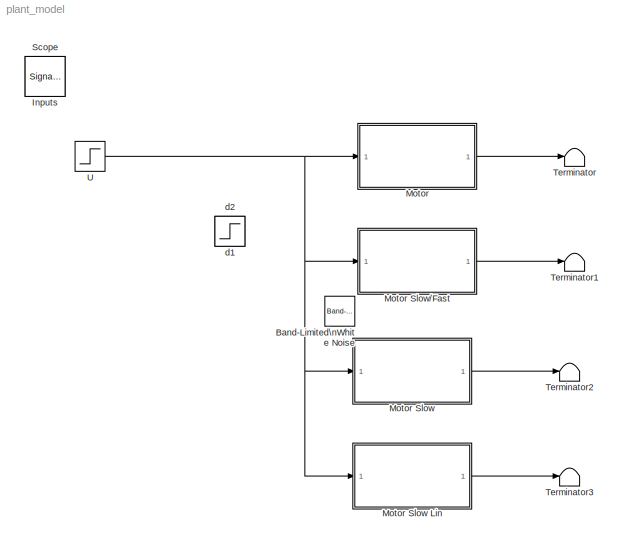
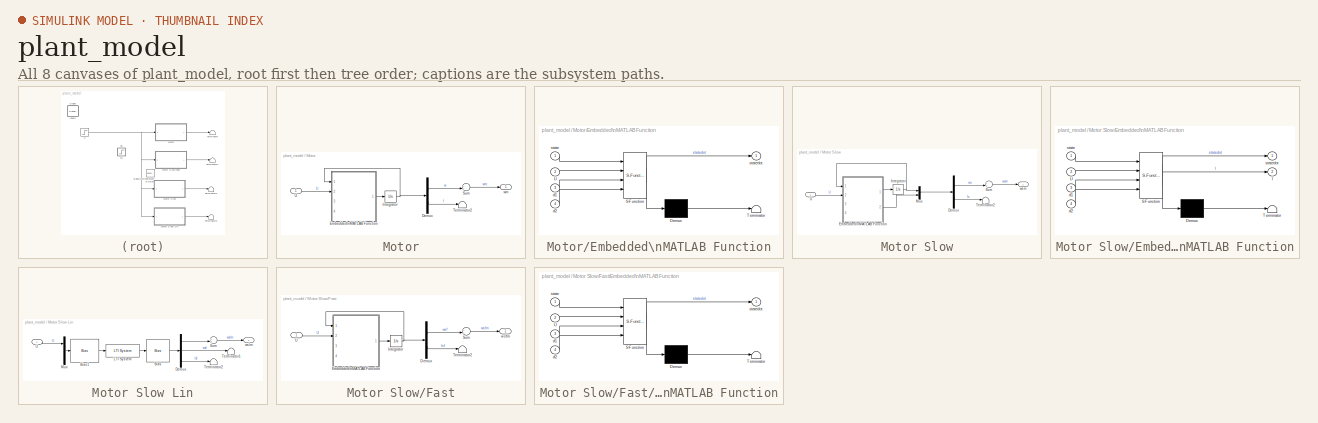
[diagram: thumbnail index - all 8 canvases of the model, root first then tree order]
MODEL plant_model
KIND model
BLOCK [Reference] Band-Limited\nWhite Noise  REF=simulink/Sources/Band-Limited\nWhite Noise
  Cov = [0.1]
  FunctionWithSeparateData = off
  IOType = siggen
  Ports = [0, 1]
  RTWMemSecDataConstants = Inherit from model
  RTWMemSecDataInternal = Inherit from model
  RTWMemSecDataParameters = Inherit from model
  RTWMemSecFuncExecute = Inherit from model
  RTWMemSecFuncInitTerm = Inherit from model
  SID = 54
  ShowPortLabels = FromPortIcon
  SourceBlock = simulink/Sources/Band-Limited\nWhite Noise
  SourceType = Band-Limited White Noise.
  SystemSampleTime = -1
  Ts = 1e-2
  VectorParams1D = on
  seed = [23341]
BLOCK [SignalViewerScope] Inputs
  DataFormat = Array
  IOType = viewer
  LegendLocations = 240.3333           653            66      20.33333\n236.8333         431.5            70      20.33333\n236.8333         211.5            70      20.33333
  LimitDataPoints = off
  MaxDataPoints = 7500
  NumInputPorts = 3
  Ports = []
  RefreshTime = 0.035000
  SID = 55
  ShowDataMarkers = off
  ShowLegends = on
  TimeRange = 20
  YMax = 6.000000000000001~1~1
  YMin = 4.5~0~0
BLOCK [SubSystem] Motor
  FunctionWithSeparateData = off
  MaskHideContents = off
  MinAlgLoopOccurrences = off
  Opaque = off
  Ports = [1, 1]
  PropExecContextOutsideSubsystem = off
  RTWSystemCode = Auto
  RequestExecContextInheritance = off
  SID = 1
BLOCK [SubSystem] Motor Slow
  FunctionWithSeparateData = off
  MaskHideContents = off
  MinAlgLoopOccurrences = off
  Opaque = off
  Ports = [1, 1]
  PropExecContextOutsideSubsystem = off
  RTWSystemCode = Auto
  RequestExecContextInheritance = off
  SID = 13
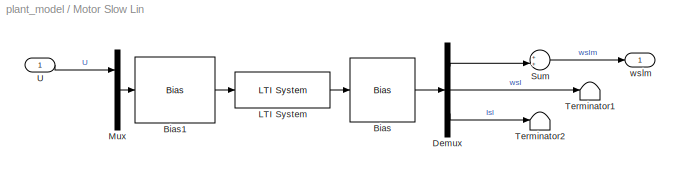
BLOCK [SubSystem] Motor Slow Lin
  FunctionWithSeparateData = off
  MaskHideContents = off
  MinAlgLoopOccurrences = off
  Opaque = off
  Ports = [1, 1]
  PropExecContextOutsideSubsystem = off
  RTWSystemCode = Auto
  RequestExecContextInheritance = off
  SID = 26
BLOCK [Bias] Motor Slow Lin/Bias
  Bias = [wbar; wbar; Ibar]
  SID = 28
  SaturateOnIntegerOverflow = off
BLOCK [Bias] Motor Slow Lin/Bias1
  Bias = [-Ubar; -d1bar; -d2bar]
  SID = 29
  SaturateOnIntegerOverflow = off
BLOCK [Demux] Motor Slow Lin/Demux
  DisplayOption = bar
  Outputs = 3
  Ports = [1, 3]
  SID = 30
BLOCK [Reference] Motor Slow Lin/LTI System  REF=cstblocks/LTI System
  FunctionWithSeparateData = off
  IC = 0
  Ports = [1, 1]
  RTWMemSecDataConstants = Inherit from model
  RTWMemSecDataInternal = Inherit from model
  RTWMemSecDataParameters = Inherit from model
  RTWMemSecFuncExecute = Inherit from model
  RTWMemSecFuncInitTerm = Inherit from model
  SID = 31
  ShowPortLabels = FromPortIcon
  SourceBlock = cstblocks/LTI System
  SourceType = LTI Block
  SystemSampleTime = -1
  sys = syss(:,:,2)
BLOCK [Mux] Motor Slow Lin/Mux
  DisplayOption = bar
  Inputs = 3
  Ports = [3, 1]
  SID = 32
BLOCK [Sum] Motor Slow Lin/Sum
  IconShape = round
  InputSameDT = off
  Inputs = ++|
  OutDataType = sfix(16)
  OutDataTypeMode = Inherit via internal rule
  OutDataTypeStr = Inherit: Inherit via internal rule
  OutScaling = 2^0
  Ports = [2, 1]
  SID = 33
  SaturateOnIntegerOverflow = off
BLOCK [Terminator] Motor Slow Lin/Terminator1
  SID = 34
BLOCK [Terminator] Motor Slow Lin/Terminator2
  SID = 35
BLOCK [Inport] Motor Slow Lin/U
  IconDisplay = Port number
  OutDataType = sfix(16)
  OutScaling = 2^0
  SID = 27
BLOCK [Outport] Motor Slow Lin/wslm
  IconDisplay = Port number
  OutDataType = sfix(16)
  OutScaling = 2^0
  SID = 36
BLOCK [SubSystem] Motor Slow//Fast
  FunctionWithSeparateData = off
  MaskHideContents = off
  MinAlgLoopOccurrences = off
  Opaque = off
  Ports = [1, 1]
  PropExecContextOutsideSubsystem = off
  RTWSystemCode = Auto
  RequestExecContextInheritance = off
  SID = 37
BLOCK [Demux] Motor Slow//Fast/Demux
  DisplayOption = bar
  Outputs = 2
  Ports = [1, 2]
  SID = 59
BLOCK [SubSystem] Motor Slow//Fast/Embedded\nMATLAB Function
  FunctionWithSeparateData = off
  MaskDescription = Embedded MATLAB block
  MaskDisplay = disp('fcn');
  MaskHideContents = off
  MaskIconFrame = on
  MaskIconOpaque = off
  MaskIconRotate = none
  MaskIconUnits = autoscale
  MaskPortRotate = default
  MaskSelfModifiable = on
  MaskType = Stateflow
  MinAlgLoopOccurrences = off
  Opaque = off
  PermitHierarchicalResolution = ExplicitOnly
  Ports = [4, 1]
  PropExecContextOutsideSubsystem = off
  RTWSystemCode = Auto
  RequestExecContextInheritance = off
  SID = 40
  TreatAsAtomicUnit = on
BLOCK [Demux] Motor Slow//Fast/Embedded\nMATLAB Function/ Demux 
  Outputs = 1
  Ports = [1, 1]
  SID = 14
BLOCK [S-Function] Motor Slow//Fast/Embedded\nMATLAB Function/ SFunction 
  EnableBusSupport = on
  FunctionName = sf_sfun
  PortCounts = [4 2]
  Ports = [4, 2]
  SID = 13
  Tag = Stateflow S-Function plant_model 1
BLOCK [Terminator] Motor Slow//Fast/Embedded\nMATLAB Function/ Terminator 
  SID = 16
BLOCK [Inport] Motor Slow//Fast/Embedded\nMATLAB Function/U
  IconDisplay = Port number
  OutDataType = sfix(16)
  OutScaling = 2^0
  Port = 2
  SID = 2
BLOCK [Inport] Motor Slow//Fast/Embedded\nMATLAB Function/d1
  IconDisplay = Port number
  OutDataType = sfix(16)
  OutScaling = 2^0
  Port = 3
  SID = 3
BLOCK [Inport] Motor Slow//Fast/Embedded\nMATLAB Function/d2
  IconDisplay = Port number
  OutDataType = sfix(16)
  OutScaling = 2^0
  Port = 4
  SID = 4
BLOCK [Inport] Motor Slow//Fast/Embedded\nMATLAB Function/state
  IconDisplay = Port number
  OutDataType = sfix(16)
  OutScaling = 2^0
  SID = 1
BLOCK [Outport] Motor Slow//Fast/Embedded\nMATLAB Function/statedot
  IconDisplay = Port number
  OutDataType = sfix(16)
  OutScaling = 2^0
  SID = 8
BLOCK [Integrator] Motor Slow//Fast/Integrator
  InitialCondition = [wbar; Ibar]
  Ports = [1, 1]
  SID = 70
BLOCK [Sum] Motor Slow//Fast/Sum
  IconShape = round
  InputSameDT = off
  Inputs = ++|
  OutDataType = sfix(16)
  OutDataTypeMode = Inherit via internal rule
  OutDataTypeStr = Inherit: Inherit via internal rule
  OutScaling = 2^0
  Ports = [2, 1]
  SID = 60
  SaturateOnIntegerOverflow = off
BLOCK [Terminator] Motor Slow//Fast/Terminator2
  SID = 61
BLOCK [Inport] Motor Slow//Fast/U
  IconDisplay = Port number
  OutDataType = sfix(16)
  OutScaling = 2^0
  SID = 38
BLOCK [Outport] Motor Slow//Fast/wsfm
  IconDisplay = Port number
  OutDataType = sfix(16)
  OutScaling = 2^0
  SID = 62
BLOCK [Demux] Motor Slow/Demux
  DisplayOption = bar
  Outputs = 2
  Ports = [1, 2]
  SID = 66
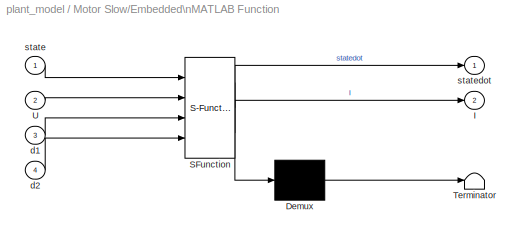
BLOCK [SubSystem] Motor Slow/Embedded\nMATLAB Function
  FunctionWithSeparateData = off
  MaskDescription = Embedded MATLAB block
  MaskDisplay = disp('fcn');
  MaskHideContents = off
  MaskIconFrame = on
  MaskIconOpaque = off
  MaskIconRotate = none
  MaskIconUnits = autoscale
  MaskPortRotate = default
  MaskSelfModifiable = on
  MaskType = Stateflow
  MinAlgLoopOccurrences = off
  Opaque = off
  PermitHierarchicalResolution = ExplicitOnly
  Ports = [4, 2]
  PropExecContextOutsideSubsystem = off
  RTWSystemCode = Auto
  RequestExecContextInheritance = off
  SID = 16
  TreatAsAtomicUnit = on
BLOCK [Demux] Motor Slow/Embedded\nMATLAB Function/ Demux 
  Outputs = 1
  Ports = [1, 1]
  SID = 15
BLOCK [S-Function] Motor Slow/Embedded\nMATLAB Function/ SFunction 
  EnableBusSupport = on
  FunctionName = sf_sfun
  PortCounts = [4 3]
  Ports = [4, 3]
  SID = 14
  Tag = Stateflow S-Function plant_model 3
BLOCK [Terminator] Motor Slow/Embedded\nMATLAB Function/ Terminator 
  SID = 17
BLOCK [Outport] Motor Slow/Embedded\nMATLAB Function/I
  IconDisplay = Port number
  OutDataType = sfix(16)
  OutScaling = 2^0
  Port = 2
  SID = 9
BLOCK [Inport] Motor Slow/Embedded\nMATLAB Function/U
  IconDisplay = Port number
  OutDataType = sfix(16)
  OutScaling = 2^0
  Port = 2
  SID = 2
BLOCK [Inport] Motor Slow/Embedded\nMATLAB Function/d1
  IconDisplay = Port number
  OutDataType = sfix(16)
  OutScaling = 2^0
  Port = 3
  SID = 3
BLOCK [Inport] Motor Slow/Embedded\nMATLAB Function/d2
  IconDisplay = Port number
  OutDataType = sfix(16)
  OutScaling = 2^0
  Port = 4
  SID = 4
BLOCK [Inport] Motor Slow/Embedded\nMATLAB Function/state
  IconDisplay = Port number
  OutDataType = sfix(16)
  OutScaling = 2^0
  SID = 1
BLOCK [Outport] Motor Slow/Embedded\nMATLAB Function/statedot
  IconDisplay = Port number
  OutDataType = sfix(16)
  OutScaling = 2^0
  SID = 8
BLOCK [Integrator] Motor Slow/Integrator
  InitialCondition = [wbar]
  Ports = [1, 1]
  SID = 19
BLOCK [Mux] Motor Slow/Mux
  DisplayOption = bar
  Inputs = 2
  Ports = [2, 1]
  SID = 20
BLOCK [Sum] Motor Slow/Sum
  IconShape = round
  InputSameDT = off
  Inputs = ++|
  OutDataType = sfix(16)
  OutDataTypeMode = Inherit via internal rule
  OutDataTypeStr = Inherit: Inherit via internal rule
  OutScaling = 2^0
  Ports = [2, 1]
  SID = 67
  SaturateOnIntegerOverflow = off
BLOCK [Terminator] Motor Slow/Terminator2
  SID = 68
BLOCK [Inport] Motor Slow/U
  IconDisplay = Port number
  OutDataType = sfix(16)
  OutScaling = 2^0
  SID = 14
BLOCK [Outport] Motor Slow/wsm
  IconDisplay = Port number
  OutDataType = sfix(16)
  OutScaling = 2^0
  SID = 25
BLOCK [Demux] Motor/Demux
  DisplayOption = bar
  Outputs = 2
  Ports = [1, 2]
  SID = 63
BLOCK [SubSystem] Motor/Embedded\nMATLAB Function
  FunctionWithSeparateData = off
  MaskDescription = Embedded MATLAB block
  MaskDisplay = disp('fcn');
  MaskHideContents = off
  MaskIconFrame = on
  MaskIconOpaque = off
  MaskIconRotate = none
  MaskIconUnits = autoscale
  MaskPortRotate = default
  MaskSelfModifiable = on
  MaskType = Stateflow
  MinAlgLoopOccurrences = off
  Opaque = off
  PermitHierarchicalResolution = ExplicitOnly
  Ports = [4, 1]
  PropExecContextOutsideSubsystem = off
  RTWSystemCode = Auto
  RequestExecContextInheritance = off
  SID = 4
  TreatAsAtomicUnit = on
BLOCK [Demux] Motor/Embedded\nMATLAB Function/ Demux 
  Outputs = 1
  Ports = [1, 1]
  SID = 14
BLOCK [S-Function] Motor/Embedded\nMATLAB Function/ SFunction 
  EnableBusSupport = on
  FunctionName = sf_sfun
  PortCounts = [4 2]
  Ports = [4, 2]
  SID = 13
  Tag = Stateflow S-Function plant_model 2
BLOCK [Terminator] Motor/Embedded\nMATLAB Function/ Terminator 
  SID = 16
BLOCK [Inport] Motor/Embedded\nMATLAB Function/U
  IconDisplay = Port number
  OutDataType = sfix(16)
  OutScaling = 2^0
  Port = 2
  SID = 2
BLOCK [Inport] Motor/Embedded\nMATLAB Function/d1
  IconDisplay = Port number
  OutDataType = sfix(16)
  OutScaling = 2^0
  Port = 3
  SID = 3
BLOCK [Inport] Motor/Embedded\nMATLAB Function/d2
  IconDisplay = Port number
  OutDataType = sfix(16)
  OutScaling = 2^0
  Port = 4
  SID = 4
BLOCK [Inport] Motor/Embedded\nMATLAB Function/state
  IconDisplay = Port number
  OutDataType = sfix(16)
  OutScaling = 2^0
  SID = 1
BLOCK [Outport] Motor/Embedded\nMATLAB Function/statedot
  IconDisplay = Port number
  OutDataType = sfix(16)
  OutScaling = 2^0
  SID = 8
BLOCK [Integrator] Motor/Integrator
  InitialCondition = [wbar; Ibar]
  Ports = [1, 1]
  SID = 7
BLOCK [Sum] Motor/Sum
  IconShape = round
  InputSameDT = off
  Inputs = ++|
  OutDataType = sfix(16)
  OutDataTypeMode = Inherit via internal rule
  OutDataTypeStr = Inherit: Inherit via internal rule
  OutScaling = 2^0
  Ports = [2, 1]
  SID = 64
  SaturateOnIntegerOverflow = off
BLOCK [Terminator] Motor/Terminator2
  SID = 65
BLOCK [Inport] Motor/U
  IconDisplay = Port number
  OutDataType = sfix(16)
  OutScaling = 2^0
  SID = 2
BLOCK [Outport] Motor/wm
  IconDisplay = Port number
  OutDataType = sfix(16)
  OutScaling = 2^0
  SID = 12
BLOCK [SignalViewerScope] Scope
  DataFormat = Array
  IOType = viewer
  MaxDataPoints = 7500
  NumInputPorts = 3
  Ports = []
  RefreshTime = 0.035000
  SID = 69
  SaveName = ScopeData1
  ShowDataMarkers = off
  ShowLegends = off
  TimeRange = 20
  YMax = 400~380~5.5
  YMin = 280~300~2
BLOCK [Terminator] Terminator
  SID = 49
BLOCK [Terminator] Terminator1
  SID = 50
BLOCK [Terminator] Terminator2
  SID = 51
BLOCK [Terminator] Terminator3
  SID = 52
BLOCK [Step] U
  After = Ubar+1
  Before = Ubar
  SID = 53
  SampleTime = 0
  Time = 5
BLOCK [Step] d1
  After = d1bar+1
  Before = d1bar
  IOType = siggen
  SID = 71
  SampleTime = 0
  Time = 10
BLOCK [Step] d2
  After = d2bar+1
  Before = d2bar
  IOType = siggen
  SID = 72
  SampleTime = 0
  Time = 15
LINE Motor Slow Lin/Bias1:1 -> Motor Slow Lin/LTI System:1
LINE Motor Slow Lin/Bias:1 -> Motor Slow Lin/Demux:1
LINE Motor Slow Lin/Demux:1 -> Motor Slow Lin/Sum:2
LINE Motor Slow Lin/Demux:2 -> Motor Slow Lin/Terminator1:1
LINE Motor Slow Lin/Demux:3 -> Motor Slow Lin/Terminator2:1
LINE Motor Slow Lin/LTI System:1 -> Motor Slow Lin/Bias:1
LINE Motor Slow Lin/Mux:1 -> Motor Slow Lin/Bias1:1
LINE Motor Slow Lin/Sum:1 -> Motor Slow Lin/wslm:1
LINE Motor Slow Lin/U:1 -> Motor Slow Lin/Mux:1
LINE Motor Slow Lin:1 -> Terminator3:1
LINE Motor Slow//Fast/Demux:1 -> Motor Slow//Fast/Sum:2
LINE Motor Slow//Fast/Demux:2 -> Motor Slow//Fast/Terminator2:1
LINE Motor Slow//Fast/Embedded\nMATLAB Function/ Demux :1 -> Motor Slow//Fast/Embedded\nMATLAB Function/ Terminator :1
LINE Motor Slow//Fast/Embedded\nMATLAB Function/ SFunction :1 -> Motor Slow//Fast/Embedded\nMATLAB Function/ Demux :1
LINE Motor Slow//Fast/Embedded\nMATLAB Function/ SFunction :2 -> Motor Slow//Fast/Embedded\nMATLAB Function/statedot:1
LINE Motor Slow//Fast/Embedded\nMATLAB Function/U:1 -> Motor Slow//Fast/Embedded\nMATLAB Function/ SFunction :2
LINE Motor Slow//Fast/Embedded\nMATLAB Function/d1:1 -> Motor Slow//Fast/Embedded\nMATLAB Function/ SFunction :3
LINE Motor Slow//Fast/Embedded\nMATLAB Function/d2:1 -> Motor Slow//Fast/Embedded\nMATLAB Function/ SFunction :4
LINE Motor Slow//Fast/Embedded\nMATLAB Function/state:1 -> Motor Slow//Fast/Embedded\nMATLAB Function/ SFunction :1
LINE Motor Slow//Fast/Embedded\nMATLAB Function:1 -> Motor Slow//Fast/Integrator:1
NET Motor Slow//Fast/Integrator:1 -> Motor Slow//Fast/Demux:1, Motor Slow//Fast/Embedded\nMATLAB Function:1
LINE Motor Slow//Fast/Sum:1 -> Motor Slow//Fast/wsfm:1
LINE Motor Slow//Fast/U:1 -> Motor Slow//Fast/Embedded\nMATLAB Function:2
LINE Motor Slow//Fast:1 -> Terminator1:1
LINE Motor Slow/Demux:1 -> Motor Slow/Sum:2
LINE Motor Slow/Demux:2 -> Motor Slow/Terminator2:1
LINE Motor Slow/Embedded\nMATLAB Function/ Demux :1 -> Motor Slow/Embedded\nMATLAB Function/ Terminator :1
LINE Motor Slow/Embedded\nMATLAB Function/ SFunction :1 -> Motor Slow/Embedded\nMATLAB Function/ Demux :1
LINE Motor Slow/Embedded\nMATLAB Function/ SFunction :2 -> Motor Slow/Embedded\nMATLAB Function/statedot:1
LINE Motor Slow/Embedded\nMATLAB Function/ SFunction :3 -> Motor Slow/Embedded\nMATLAB Function/I:1
LINE Motor Slow/Embedded\nMATLAB Function/U:1 -> Motor Slow/Embedded\nMATLAB Function/ SFunction :2
LINE Motor Slow/Embedded\nMATLAB Function/d1:1 -> Motor Slow/Embedded\nMATLAB Function/ SFunction :3
LINE Motor Slow/Embedded\nMATLAB Function/d2:1 -> Motor Slow/Embedded\nMATLAB Function/ SFunction :4
LINE Motor Slow/Embedded\nMATLAB Function/state:1 -> Motor Slow/Embedded\nMATLAB Function/ SFunction :1
LINE Motor Slow/Embedded\nMATLAB Function:1 -> Motor Slow/Integrator:1
LINE Motor Slow/Embedded\nMATLAB Function:2 -> Motor Slow/Mux:2
NET Motor Slow/Integrator:1 -> Motor Slow/Embedded\nMATLAB Function:1, Motor Slow/Mux:1
LINE Motor Slow/Mux:1 -> Motor Slow/Demux:1
LINE Motor Slow/Sum:1 -> Motor Slow/wsm:1
LINE Motor Slow/U:1 -> Motor Slow/Embedded\nMATLAB Function:2
LINE Motor Slow:1 -> Terminator2:1
LINE Motor/Demux:1 -> Motor/Sum:2
LINE Motor/Demux:2 -> Motor/Terminator2:1
LINE Motor/Embedded\nMATLAB Function/ Demux :1 -> Motor/Embedded\nMATLAB Function/ Terminator :1
LINE Motor/Embedded\nMATLAB Function/ SFunction :1 -> Motor/Embedded\nMATLAB Function/ Demux :1
LINE Motor/Embedded\nMATLAB Function/ SFunction :2 -> Motor/Embedded\nMATLAB Function/statedot:1
LINE Motor/Embedded\nMATLAB Function/U:1 -> Motor/Embedded\nMATLAB Function/ SFunction :2
LINE Motor/Embedded\nMATLAB Function/d1:1 -> Motor/Embedded\nMATLAB Function/ SFunction :3
LINE Motor/Embedded\nMATLAB Function/d2:1 -> Motor/Embedded\nMATLAB Function/ SFunction :4
LINE Motor/Embedded\nMATLAB Function/state:1 -> Motor/Embedded\nMATLAB Function/ SFunction :1
LINE Motor/Embedded\nMATLAB Function:1 -> Motor/Integrator:1
NET Motor/Integrator:1 -> Motor/Demux:1, Motor/Embedded\nMATLAB Function:1
LINE Motor/Sum:1 -> Motor/wm:1
LINE Motor/U:1 -> Motor/Embedded\nMATLAB Function:2
LINE Motor:1 -> Terminator:1
NET U:1 -> Motor Slow Lin:1, Motor Slow//Fast:1, Motor Slow:1, Motor:1
note: NET lines group one-source signal fan-out (src -> all destinations, sorted); 1:1 wires keep LINE
CHART Motor Slow/Fast/Embedded\nMATLAB Function states=1 transitions=1
  STATE_LABEL 'eML_blk_kernel()'
CHART Motor/Embedded\nMATLAB Function states=1 transitions=1
  STATE_LABEL 'eML_blk_kernel()'
CHART Motor Slow/Embedded\nMATLAB Function states=1 transitions=1
  STATE_LABEL 'eML_blk_kernel()'
